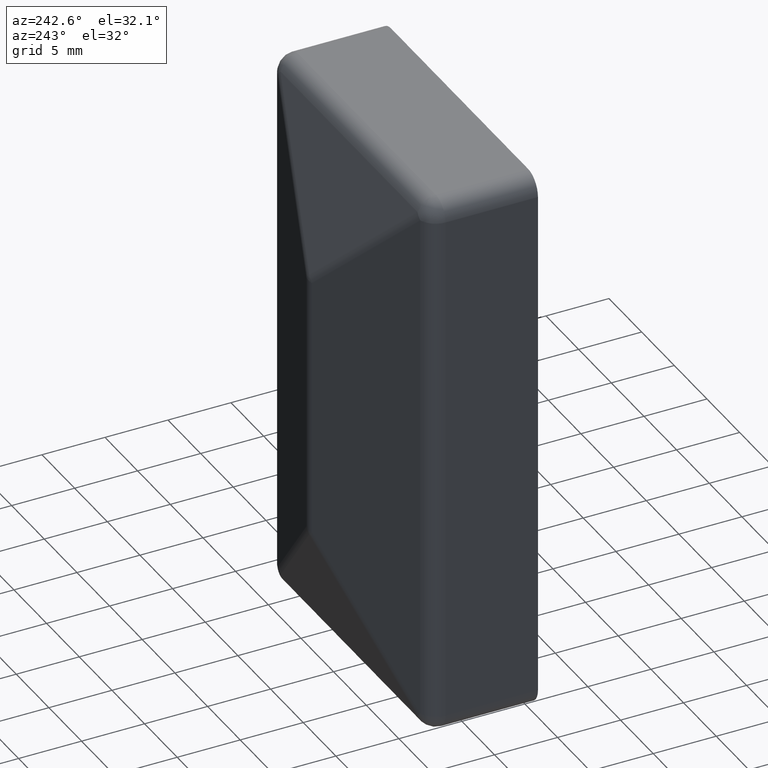
[diagram: clean part render]
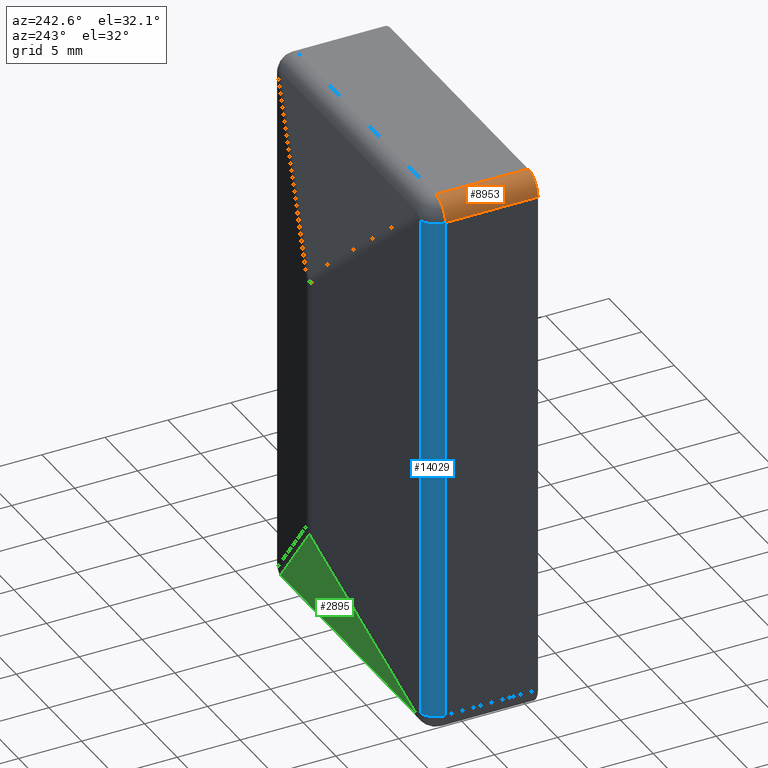
[diagram: same view with three faces highlighted in distinct colors, each labeled with its STEP entity id]
A machine part, auxiliary view with three faces highlighted in distinct colors.
Their STEP definitions:

[orange] entity #8953 — the highlighted cylindrical surface (edge-blend (fillet) strip) has radius 1.5 mm, axis along (0, -1, 0).
#66 = CIRCLE ( 'NONE', #11996, 1.500000000000001332 ) ;
#447 = CARTESIAN_POINT ( 'NONE',  ( -11.99999999999998224, 7.350000000000012967, 20.49999999999999645 ) ) ;
#600 = CIRCLE ( 'NONE', #6680, 1.500000000000001332 ) ;
#1071 = CARTESIAN_POINT ( 'NONE',  ( -10.50000000000000000, 7.350000000000012967, 20.49999999999999645 ) ) ;
#1471 = CYLINDRICAL_SURFACE ( 'NONE', #12340, 1.500000000000001332 ) ;
#1545 = DIRECTION ( 'NONE',  ( 0.000000000000000000, -1.000000000000000000, 0.000000000000000000 ) ) ;
#2491 = CARTESIAN_POINT ( 'NONE',  ( -10.50000000000000000, 30.00000000000000000, 22.00000000000000000 ) ) ;
#2676 = CARTESIAN_POINT ( 'NONE',  ( -12.00000000000000000, 30.00000000000000000, 20.49999999999999645 ) ) ;
#3195 = ORIENTED_EDGE ( 'NONE', *, *, #10812, .F. ) ;
#3251 = ORIENTED_EDGE ( 'NONE', *, *, #10291, .F. ) ;
#3294 = DIRECTION ( 'NONE',  ( 0.000000000000000000, 1.000000000000000000, -0.000000000000000000 ) ) ;
#3690 = VERTEX_POINT ( 'NONE', #12519 ) ;
#3691 = EDGE_CURVE ( 'NONE', #9987, #6707, #5647, .T. ) ;
#4203 = VERTEX_POINT ( 'NONE', #447 ) ;
#4350 = DIRECTION ( 'NONE',  ( 0.000000000000000000, 0.000000000000000000, 1.000000000000000000 ) ) ;
#4587 = EDGE_CURVE ( 'NONE', #6707, #3690, #66, .T. ) ;
#5507 = CARTESIAN_POINT ( 'NONE',  ( -10.50000000000000000, 30.00000000000000000, 20.49999999999999645 ) ) ;
#5619 = DIRECTION ( 'NONE',  ( 0.000000000000000000, 0.000000000000000000, -1.000000000000000000 ) ) ;
#5647 = LINE ( 'NONE', #2491, #8556 ) ;
#5805 = CARTESIAN_POINT ( 'NONE',  ( -10.50000000000000000, 7.350000000000012967, 22.00000000000000000 ) ) ;
#6680 = AXIS2_PLACEMENT_3D ( 'NONE', #1071, #3294, #4350 ) ;
#6707 = VERTEX_POINT ( 'NONE', #12786 ) ;
#7320 = DIRECTION ( 'NONE',  ( -0.000000000000000000, -1.000000000000000000, -0.000000000000000000 ) ) ;
#8083 = ORIENTED_EDGE ( 'NONE', *, *, #3691, .F. ) ;
#8246 = EDGE_LOOP ( 'NONE', ( #12502, #8083, #3251, #3195 ) ) ;
#8471 = DIRECTION ( 'NONE',  ( 0.000000000000000000, 0.000000000000000000, 1.000000000000000000 ) ) ;
#8556 = VECTOR ( 'NONE', #1545, 1000.000000000000000 ) ;
#8675 = FACE_OUTER_BOUND ( 'NONE', #8246, .T. ) ;
#8953 = ADVANCED_FACE ( 'NONE', ( #8675 ), #1471, .T. ) ;
#9592 = CARTESIAN_POINT ( 'NONE',  ( -10.50000000000000000, 0.000000000000000000, 20.49999999999999645 ) ) ;
#9987 = VERTEX_POINT ( 'NONE', #5805 ) ;
#10291 = EDGE_CURVE ( 'NONE', #4203, #9987, #600, .T. ) ;
#10812 = EDGE_CURVE ( 'NONE', #3690, #4203, #11390, .T. ) ;
#11390 = LINE ( 'NONE', #2676, #13761 ) ;
#11627 = DIRECTION ( 'NONE',  ( -0.000000000000000000, 1.000000000000000000, -0.000000000000000000 ) ) ;
#11996 = AXIS2_PLACEMENT_3D ( 'NONE', #9592, #7320, #8471 ) ;
#12340 = AXIS2_PLACEMENT_3D ( 'NONE', #5507, #13200, #5619 ) ;
#12502 = ORIENTED_EDGE ( 'NONE', *, *, #4587, .F. ) ;
#12519 = CARTESIAN_POINT ( 'NONE',  ( -12.00000000000000000, 0.000000000000000000, 20.49999999999999645 ) ) ;
#12786 = CARTESIAN_POINT ( 'NONE',  ( -10.50000000000000000, 0.000000000000000000, 22.00000000000000000 ) ) ;
#13200 = DIRECTION ( 'NONE',  ( 0.000000000000000000, -1.000000000000000000, 0.000000000000000000 ) ) ;
#13761 = VECTOR ( 'NONE', #11627, 1000.000000000000000 ) ;

[blue] entity #14029 — the highlighted cylindrical surface (edge-blend (fillet) strip) has radius 1.5 mm, axis along (-0, -0, 1).
#382 = DIRECTION ( 'NONE',  ( 1.000000000000000000, 0.000000000000000000, 0.000000000000000000 ) ) ;
#447 = CARTESIAN_POINT ( 'NONE',  ( -11.99999999999998224, 7.350000000000012967, 20.49999999999999645 ) ) ;
#1014 = DIRECTION ( 'NONE',  ( -0.000000000000000000, -0.000000000000000000, 1.000000000000000000 ) ) ;
#1217 = DIRECTION ( 'NONE',  ( -0.000000000000000000, -0.000000000000000000, 1.000000000000000000 ) ) ;
#2607 = ORIENTED_EDGE ( 'NONE', *, *, #3861, .T. ) ;
#2835 = ORIENTED_EDGE ( 'NONE', *, *, #7182, .T. ) ;
#3500 = VERTEX_POINT ( 'NONE', #7028 ) ;
#3861 = EDGE_CURVE ( 'NONE', #6983, #4203, #10418, .T. ) ;
#4203 = VERTEX_POINT ( 'NONE', #447 ) ;
#5112 = CARTESIAN_POINT ( 'NONE',  ( -11.99999999999998224, 7.350000000000012967, -20.49999999999999645 ) ) ;
#5383 = CARTESIAN_POINT ( 'NONE',  ( -10.93102182834950042, 8.786739427831740556, 20.49999999999998224 ) ) ;
#5834 = DIRECTION ( 'NONE',  ( 0.000000000000000000, 0.000000000000000000, -1.000000000000000000 ) ) ;
#6042 = EDGE_LOOP ( 'NONE', ( #10201, #8344, #2607, #2835 ) ) ;
#6076 = EDGE_CURVE ( 'NONE', #3500, #7283, #10576, .T. ) ;
#6708 = DIRECTION ( 'NONE',  ( 1.000000000000000000, 0.000000000000000000, 0.000000000000000000 ) ) ;
#6875 = CYLINDRICAL_SURFACE ( 'NONE', #11649, 1.499999999999999556 ) ;
#6983 = VERTEX_POINT ( 'NONE', #5112 ) ;
#7028 = CARTESIAN_POINT ( 'NONE',  ( -10.93102182834950042, 8.786739427831740556, -20.49999999999999645 ) ) ;
#7182 = EDGE_CURVE ( 'NONE', #4203, #7283, #8169, .T. ) ;
#7283 = VERTEX_POINT ( 'NONE', #5383 ) ;
#7330 = VECTOR ( 'NONE', #1014, 1000.000000000000000 ) ;
#8169 = CIRCLE ( 'NONE', #11190, 1.499999999999999556 ) ;
#8344 = ORIENTED_EDGE ( 'NONE', *, *, #8929, .T. ) ;
#8929 = EDGE_CURVE ( 'NONE', #3500, #6983, #11924, .T. ) ;
#9941 = CARTESIAN_POINT ( 'NONE',  ( -11.99999999999998224, 7.350000000000012967, -22.00000000000000000 ) ) ;
#10084 = DIRECTION ( 'NONE',  ( -0.000000000000000000, -0.000000000000000000, 1.000000000000000000 ) ) ;
#10201 = ORIENTED_EDGE ( 'NONE', *, *, #6076, .F. ) ;
#10418 = LINE ( 'NONE', #9941, #13019 ) ;
#10576 = LINE ( 'NONE', #14100, #7330 ) ;
#10842 = AXIS2_PLACEMENT_3D ( 'NONE', #13289, #12144, #6708 ) ;
#11017 = FACE_OUTER_BOUND ( 'NONE', #6042, .T. ) ;
#11019 = CARTESIAN_POINT ( 'NONE',  ( -10.49999999999998401, 7.350000000000012967, -22.00000000000000000 ) ) ;
#11190 = AXIS2_PLACEMENT_3D ( 'NONE', #11303, #5834, #382 ) ;
#11303 = CARTESIAN_POINT ( 'NONE',  ( -10.49999999999998401, 7.350000000000012967, 20.49999999999999645 ) ) ;
#11649 = AXIS2_PLACEMENT_3D ( 'NONE', #11019, #1217, #13224 ) ;
#11924 = CIRCLE ( 'NONE', #10842, 1.499999999999999556 ) ;
#12144 = DIRECTION ( 'NONE',  ( -0.000000000000000000, -0.000000000000000000, 1.000000000000000000 ) ) ;
#13019 = VECTOR ( 'NONE', #10084, 1000.000000000000000 ) ;
#13224 = DIRECTION ( 'NONE',  ( 1.000000000000000000, 0.000000000000000000, 0.000000000000000000 ) ) ;
#13289 = CARTESIAN_POINT ( 'NONE',  ( -10.49999999999998401, 7.350000000000012967, -20.49999999999999645 ) ) ;
#14029 = ADVANCED_FACE ( 'NONE', ( #11017 ), #6875, .T. ) ;
#14100 = CARTESIAN_POINT ( 'NONE',  ( -10.93102182834950042, 8.786739427831740556, -22.00000000000000000 ) ) ;

[green] entity #2895 — the highlighted planar face has unit normal (0, -0.955, 0.2965).
#209 = AXIS2_PLACEMENT_3D ( 'NONE', #2702, #11473, #11513 ) ;
#225 = CARTESIAN_POINT ( 'NONE',  ( -11.24130410452365680, 8.560138685328691821, -21.66102917434181663 ) ) ;
#749 = CARTESIAN_POINT ( 'NONE',  ( -10.49999999999998401, 8.782529916685790639, -20.94481236246335598 ) ) ;
#905 = CARTESIAN_POINT ( 'NONE',  ( 10.50000000000002132, 8.782529916685790639, -20.94481236246335598 ) ) ;
#1556 = ORIENTED_EDGE ( 'NONE', *, *, #12434, .T. ) ;
#2328 = EDGE_CURVE ( 'NONE', #13154, #4719, #6670, .T. ) ;
#2593 = ORIENTED_EDGE ( 'NONE', *, *, #13162, .F. ) ;
#2702 = CARTESIAN_POINT ( 'NONE',  ( -12.00000000000000533, 8.782529916685790639, -20.94481236246335598 ) ) ;
#2895 = ADVANCED_FACE ( 'NONE', ( #7354 ), #4804, .F. ) ;
#3305 = CARTESIAN_POINT ( 'NONE',  ( -0.6195615678548944683, 12.11839838704224803, -10.20156018428652445 ) ) ;
#4487 = VERTEX_POINT ( 'NONE', #905 ) ;
#4719 = VERTEX_POINT ( 'NONE', #8688 ) ;
#4804 = PLANE ( 'NONE',  #209 ) ;
#4983 = VECTOR ( 'NONE', #13943, 1000.000000000000000 ) ;
#5168 = VECTOR ( 'NONE', #8829, 1000.000000000000114 ) ;
#5862 = LINE ( 'NONE', #7300, #4983 ) ;
#6670 = LINE ( 'NONE', #225, #7367 ) ;
#7119 = EDGE_LOOP ( 'NONE', ( #13501, #1556, #2593 ) ) ;
#7300 = CARTESIAN_POINT ( 'NONE',  ( -12.00000000000000533, 8.782529916685790639, -20.94481236246335598 ) ) ;
#7354 = FACE_OUTER_BOUND ( 'NONE', #7119, .T. ) ;
#7367 = VECTOR ( 'NONE', #12343, 1000.000000000000000 ) ;
#8635 = LINE ( 'NONE', #3305, #5168 ) ;
#8688 = CARTESIAN_POINT ( 'NONE',  ( 0.000000000000000000, 11.93252991668578034, -10.80015448341911366 ) ) ;
#8829 = DIRECTION ( 'NONE',  ( 0.7029955450421475627, -0.2108986635126436915, -0.6792046947566503512 ) ) ;
#11473 = DIRECTION ( 'NONE',  ( 0.000000000000000000, -0.9550199444571862983, 0.2965415749755721531 ) ) ;
#11513 = DIRECTION ( 'NONE',  ( 0.000000000000000000, -0.2965415749755720976, -0.9550199444571861873 ) ) ;
#12343 = DIRECTION ( 'NONE',  ( 0.7029955450421475627, 0.2108986635126437192, 0.6792046947566503512 ) ) ;
#12434 = EDGE_CURVE ( 'NONE', #4719, #4487, #8635, .T. ) ;
#13154 = VERTEX_POINT ( 'NONE', #749 ) ;
#13162 = EDGE_CURVE ( 'NONE', #13154, #4487, #5862, .T. ) ;
#13501 = ORIENTED_EDGE ( 'NONE', *, *, #2328, .T. ) ;
#13943 = DIRECTION ( 'NONE',  ( 1.000000000000000000, -0.000000000000000000, -0.000000000000000000 ) ) ;